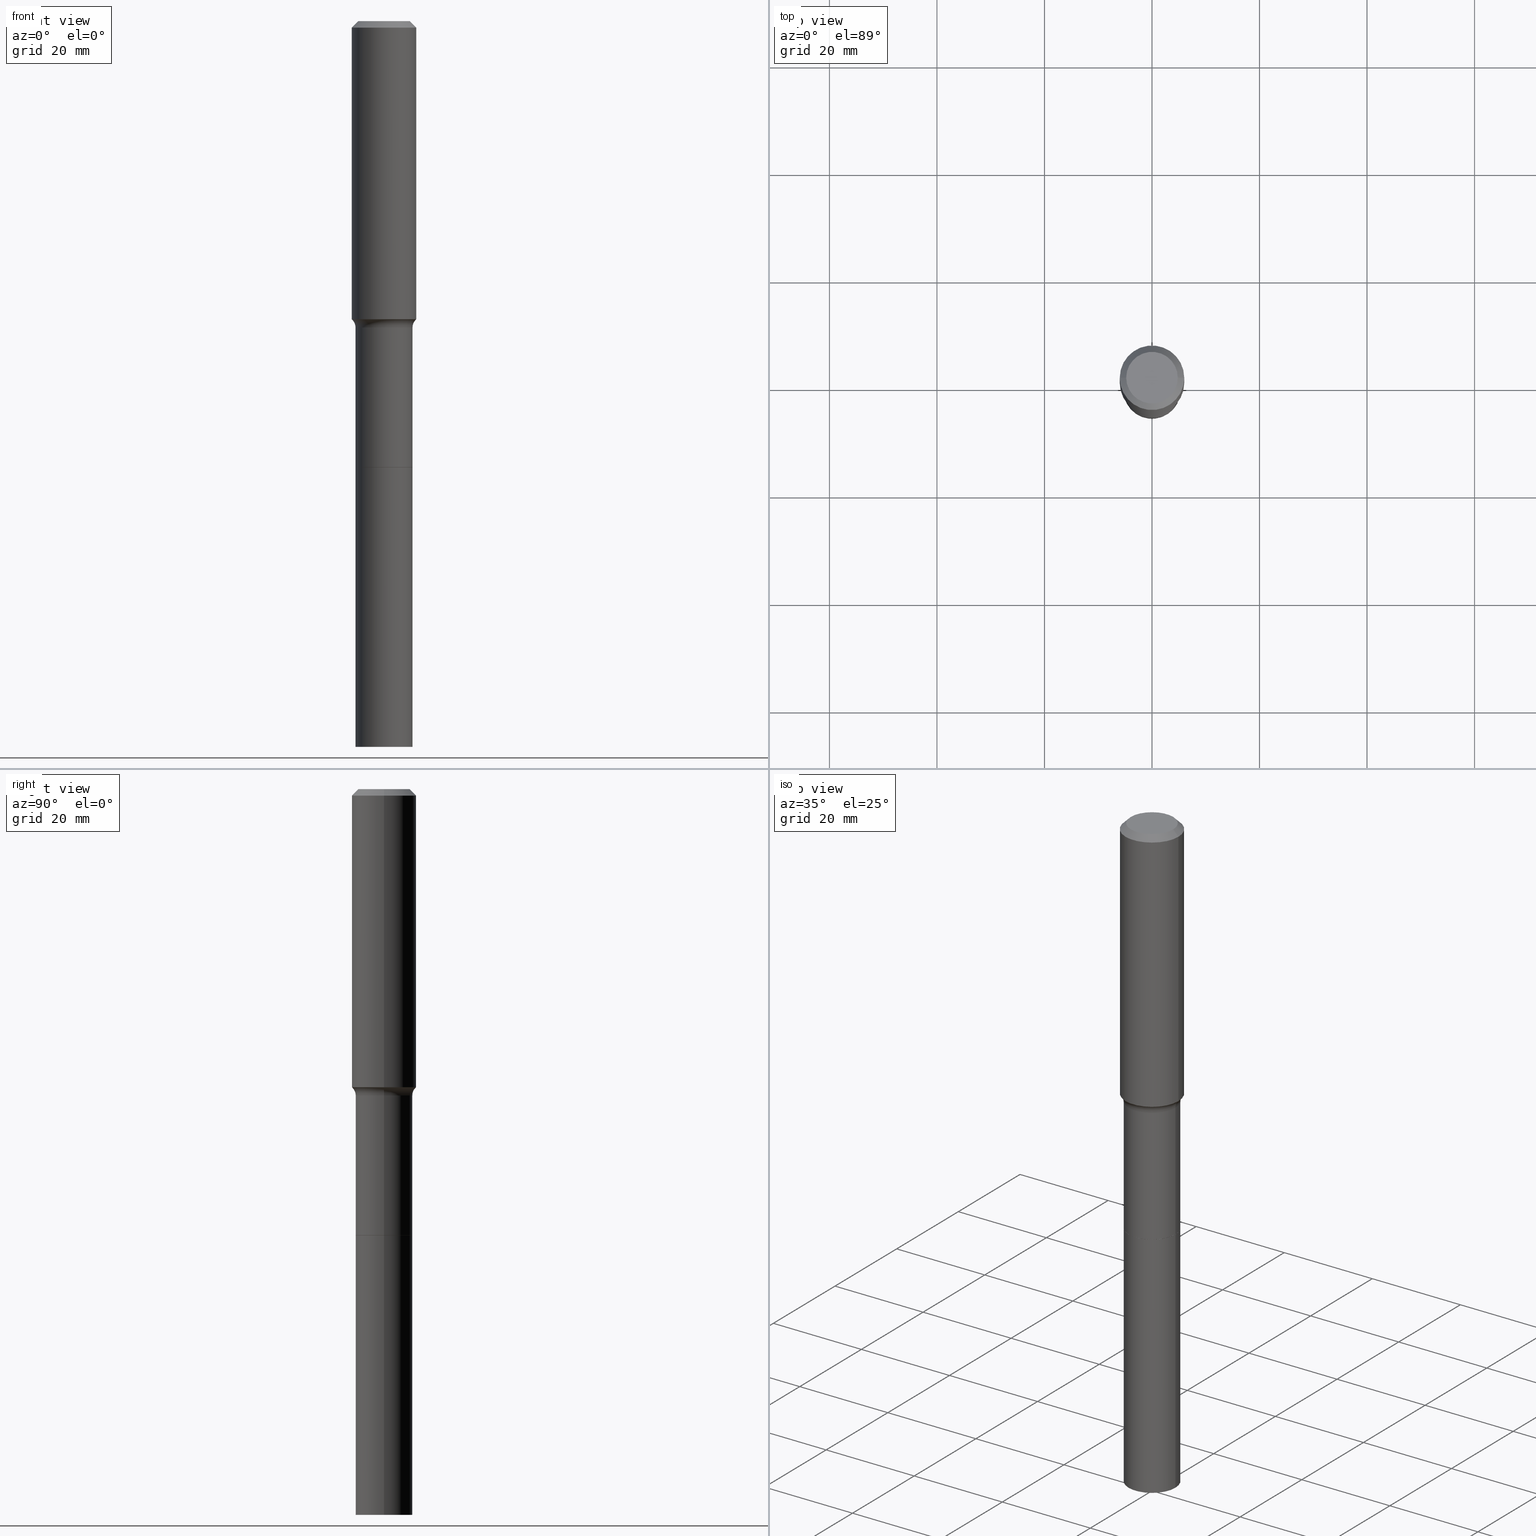
[diagram: canonical four-view strip — front | top / right | iso, engineering-drawing reading convention]
A machine part, canonical four-view strip (front | top / right | iso — engineering-drawing reading convention). The complete STEP part file that produces these views, byte-faithful:
ISO-10303-21;
HEADER;
FILE_DESCRIPTION (( 'STEP AP203' ),
    '1' );
FILE_NAME ('67894.STEP',
    '2025-04-01T15:32:11',
    ( '' ),
    ( '' ),
    'SwSTEP 2.0',
    'SolidWorks 2024',
    '' );
FILE_SCHEMA (( 'CONFIG_CONTROL_DESIGN' ));
ENDSEC;

DATA;
#1 = CYLINDRICAL_SURFACE ( 'NONE', #73, 0.2086500000000001687 ) ;
#2 = ADVANCED_BREP_SHAPE_REPRESENTATION ( '67894', ( #6, #350, #122 ), #284 ) ;
#3 = CYLINDRICAL_SURFACE ( 'NONE', #54, 0.2086500000000001687 ) ;
#4 = CIRCLE ( 'NONE', #501, 0.2086500000000000021 ) ;
#5 = ORIENTED_EDGE ( 'NONE', *, *, #404, .F. ) ;
#6 = MANIFOLD_SOLID_BREP ( 'Body-Move/Copy2[1]', #433 ) ;
#7 = CARTESIAN_POINT ( 'NONE',  ( 0.000000000000000000, 0.000000000000000000, 0.000000000000000000 ) ) ;
#8 = ORIENTED_EDGE ( 'NONE', *, *, #448, .F. ) ;
#9 = CARTESIAN_POINT ( 'NONE',  ( 7.991792058613026945E-29, -1.141016101533940013E-14, -3.268000000000000238 ) ) ;
#10 = ORIENTED_EDGE ( 'NONE', *, *, #497, .F. ) ;
#11 = CARTESIAN_POINT ( 'NONE',  ( 5.487632001079447088E-29, -7.834884124364020406E-15, -2.244000000000000217 ) ) ;
#12 = CIRCLE ( 'NONE', #240, 0.2086500000000003352 ) ;
#13 = AXIS2_PLACEMENT_3D ( 'NONE', #56, #419, #378 ) ;
#14 = APPROVAL_PERSON_ORGANIZATION ( #480, #454, #118 ) ;
#15 = EDGE_CURVE ( 'NONE', #371, #445, #138, .T. ) ;
#16 = LINE ( 'NONE', #221, #143 ) ;
#17 = VERTEX_POINT ( 'NONE', #110 ) ;
#18 = DIRECTION ( 'NONE',  ( -0.6819983600624963671, 7.399397606724278688E-15, 0.7313537016191724582 ) ) ;
#19 = ORIENTED_EDGE ( 'NONE', *, *, #15, .F. ) ;
#20 = CARTESIAN_POINT ( 'NONE',  ( 0.2081500000000000017, -1.286366469669979686E-14, -3.268000000000000238 ) ) ;
#21 = ORIENTED_EDGE ( 'NONE', *, *, #300, .T. ) ;
#22 = VECTOR ( 'NONE', #393, 39.37007874015748143 ) ;
#23 = DIRECTION ( 'NONE',  ( 1.000000000000000000, -6.982962677686266711E-15, 0.000000000000000000 ) ) ;
#24 = ORIENTED_EDGE ( 'NONE', *, *, #175, .F. ) ;
#25 = PERSON_AND_ORGANIZATION_ROLE ( 'design_supplier' ) ;
#26 = PRODUCT_DEFINITION_SHAPE ( 'NONE', 'NONE',  #194 ) ;
#27 = EDGE_LOOP ( 'NONE', ( #466, #269, #362, #229 ) ) ;
#28 = EDGE_CURVE ( 'NONE', #189, #379, #330, .T. ) ;
#29 = EDGE_CURVE ( 'NONE', #367, #104, #176, .T. ) ;
#30 = DIMENSIONAL_EXPONENTS ( 1.000000000000000000, 0.000000000000000000, 0.000000000000000000, 0.000000000000000000, 0.000000000000000000, 0.000000000000000000, 0.000000000000000000 ) ;
#31 = DIRECTION ( 'NONE',  ( -2.445468806185136597E-29, 3.491481338843145583E-15, 1.000000000000000000 ) ) ;
#32 = ADVANCED_FACE ( 'NONE', ( #160 ), #201, .T. ) ;
#33 = AXIS2_PLACEMENT_3D ( 'NONE', #105, #456, #267 ) ;
#34 = PERSON_AND_ORGANIZATION ( #145, #478 ) ;
#35 = DIRECTION ( 'NONE',  ( -1.000000000000000000, 7.105427357601006592E-15, 0.000000000000000000 ) ) ;
#36 = LINE ( 'NONE', #398, #184 ) ;
#37 = CALENDAR_DATE ( 2025, 1, 4 ) ;
#38 = FACE_OUTER_BOUND ( 'NONE', #426, .T. ) ;
#39 = AXIS2_PLACEMENT_3D ( 'NONE', #361, #368, #172 ) ;
#40 = CARTESIAN_POINT ( 'NONE',  ( 1.299766670487400218E-28, -1.855722331595131973E-14, -5.315000000000000391 ) ) ;
#41 = DIRECTION ( 'NONE',  ( -2.445468806185136877E-29, 3.491481338843145188E-15, 1.000000000000000000 ) ) ;
#42 = CC_DESIGN_PERSON_AND_ORGANIZATION_ASSIGNMENT ( #34, #191, ( #194 ) ) ;
#43 = DIRECTION ( 'NONE',  ( 1.000000000000000000, -6.982962677686266711E-15, 0.000000000000000000 ) ) ;
#44 = VERTEX_POINT ( 'NONE', #481 ) ;
#45 = FACE_OUTER_BOUND ( 'NONE', #146, .T. ) ;
#46 = AXIS2_PLACEMENT_3D ( 'NONE', #318, #121, #86 ) ;
#47 = ORIENTED_EDGE ( 'NONE', *, *, #510, .T. ) ;
#48 = CC_DESIGN_APPROVAL ( #129, ( #365 ) ) ;
#49 = DIRECTION ( 'NONE',  ( 1.000000000000000000, -6.982962677686266711E-15, 4.876176775795936353E-29 ) ) ;
#50 = ADVANCED_FACE ( 'NONE', ( #317 ), #271, .F. ) ;
#51 = FACE_OUTER_BOUND ( 'NONE', #334, .T. ) ;
#52 = DIRECTION ( 'NONE',  ( -2.445468806185136597E-29, 3.491481338843145583E-15, 1.000000000000000000 ) ) ;
#53 = ORIENTED_EDGE ( 'NONE', *, *, #309, .T. ) ;
#54 = AXIS2_PLACEMENT_3D ( 'NONE', #247, #96, #188 ) ;
#55 = ADVANCED_FACE ( 'NONE', ( #277 ), #483, .T. ) ;
#56 = CARTESIAN_POINT ( 'NONE',  ( 0.2886499999999998511, -9.850516301278158635E-15, -2.244000000000000217 ) ) ;
#57 = ORIENTED_EDGE ( 'NONE', *, *, #158, .T. ) ;
#58 = DIRECTION ( 'NONE',  ( 1.000000000000000000, -6.982962677686265922E-15, 0.000000000000000000 ) ) ;
#59 = ORIENTED_EDGE ( 'NONE', *, *, #220, .F. ) ;
#60 = CIRCLE ( 'NONE', #356, 0.2362000000000002709 ) ;
#61 = EDGE_CURVE ( 'NONE', #385, #183, #479, .T. ) ;
#62 = CARTESIAN_POINT ( 'NONE',  ( 1.155239464041865857E-30, -1.649375784469512352E-16, -0.04724000000000030258 ) ) ;
#63 = ORIENTED_EDGE ( 'NONE', *, *, #79, .F. ) ;
#64 = AXIS2_PLACEMENT_3D ( 'NONE', #298, #223, #502 ) ;
#65 = DIRECTION ( 'NONE',  ( -2.445468806185136597E-29, 3.491481338843145583E-15, 1.000000000000000000 ) ) ;
#66 = ORIENTED_EDGE ( 'NONE', *, *, #29, .T. ) ;
#67 = EDGE_CURVE ( 'NONE', #256, #485, #12, .T. ) ;
#68 = PERSON_AND_ORGANIZATION ( #145, #478 ) ;
#69 = DIRECTION ( 'NONE',  ( -2.445468806185136597E-29, 3.491481338843145583E-15, 1.000000000000000000 ) ) ;
#70 = EDGE_CURVE ( 'NONE', #371, #367, #372, .T. ) ;
#71 = COORDINATED_UNIVERSAL_TIME_OFFSET ( 5, 0, .BEHIND. ) ;
#72 = DIRECTION ( 'NONE',  ( -2.445468806185136597E-29, 3.491481338843145583E-15, 1.000000000000000000 ) ) ;
#73 = AXIS2_PLACEMENT_3D ( 'NONE', #165, #405, #364 ) ;
#74 =( CONVERSION_BASED_UNIT ( 'INCH', #429 ) LENGTH_UNIT ( ) NAMED_UNIT ( #30 ) );
#75 = CARTESIAN_POINT ( 'NONE',  ( 0.000000000000000000, 0.000000000000000000, 0.000000000000000000 ) ) ;
#76 = APPROVAL_STATUS ( 'not_yet_approved' ) ;
#77 = DIRECTION ( 'NONE',  ( -2.445468806185136597E-29, 3.491481338843145583E-15, 1.000000000000000000 ) ) ;
#78 = CALENDAR_DATE ( 2025, 1, 4 ) ;
#79 = EDGE_CURVE ( 'NONE', #261, #340, #95, .T. ) ;
#80 = DIRECTION ( 'NONE',  ( 1.000000000000000000, -6.982962677686266711E-15, 0.000000000000000000 ) ) ;
#81 = AXIS2_PLACEMENT_3D ( 'NONE', #148, #179, #453 ) ;
#82 = CARTESIAN_POINT ( 'NONE',  ( -0.1889600000000000168, 1.401969416799070942E-15, 3.855188123706346622E-18 ) ) ;
#83 = ORIENTED_EDGE ( 'NONE', *, *, #442, .T. ) ;
#84 = CARTESIAN_POINT ( 'NONE',  ( 0.2086500000000000021, -1.286715617803863986E-14, -3.268000000000000238 ) ) ;
#85 = EDGE_LOOP ( 'NONE', ( #173, #288 ) ) ;
#86 = DIRECTION ( 'NONE',  ( 1.000000000000000000, -6.982962677686263555E-15, 0.000000000000000000 ) ) ;
#87 = ORIENTED_EDGE ( 'NONE', *, *, #494, .F. ) ;
#88 = COORDINATED_UNIVERSAL_TIME_OFFSET ( 5, 0, .BEHIND. ) ;
#89 = CYLINDRICAL_SURFACE ( 'NONE', #227, 0.2362000000000001321 ) ;
#90 = APPROVAL_PERSON_ORGANIZATION ( #116, #355, #391 ) ;
#91 = EDGE_LOOP ( 'NONE', ( #180, #47, #124, #87 ) ) ;
#92 = DIRECTION ( 'NONE',  ( 1.000000000000000000, -6.982962677686269077E-15, 0.000000000000000000 ) ) ;
#93 = CARTESIAN_POINT ( 'NONE',  ( 0.2362000000000001321, -1.649375784469497117E-15, 1.151752954443000789E-29 ) ) ;
#94 = ORIENTED_EDGE ( 'NONE', *, *, #250, .F. ) ;
#95 = CIRCLE ( 'NONE', #208, 0.2086500000000000021 ) ;
#96 = DIRECTION ( 'NONE',  ( -2.445468806185136597E-29, 3.491481338843145583E-15, 1.000000000000000000 ) ) ;
#97 = DIRECTION ( 'NONE',  ( 0.6819983600624963671, -2.208861293262454109E-15, 0.7313537016191724582 ) ) ;
#98 = VECTOR ( 'NONE', #242, 39.37007874015748143 ) ;
#99 = LOCAL_TIME ( 11, 32, 11.00000000000000000, #427 ) ;
#100 = ADVANCED_FACE ( 'NONE', ( #310 ), #156, .T. ) ;
#101 = CARTESIAN_POINT ( 'NONE',  ( 0.1889600000000000168, -1.540873453589747738E-15, 3.855188123725863225E-18 ) ) ;
#102 = EDGE_LOOP ( 'NONE', ( #303, #211 ) ) ;
#103 = FACE_OUTER_BOUND ( 'NONE', #27, .T. ) ;
#104 = VERTEX_POINT ( 'NONE', #193 ) ;
#105 = CARTESIAN_POINT ( 'NONE',  ( 7.991792058613026945E-29, -1.141016101533940013E-14, -3.268000000000000238 ) ) ;
#106 = ORIENTED_EDGE ( 'NONE', *, *, #205, .T. ) ;
#107 = TOROIDAL_SURFACE ( 'NONE', #392, 0.2886499999999998511, 0.07999999999999990452 ) ;
#108 = MECHANICAL_CONTEXT ( 'NONE', #346, 'mechanical' ) ;
#109 = EDGE_CURVE ( 'NONE', #485, #340, #36, .T. ) ;
#110 = CARTESIAN_POINT ( 'NONE',  ( -0.2086499999999999744, -8.139102281353550858E-15, -3.267500000000000071 ) ) ;
#111 = LINE ( 'NONE', #236, #22 ) ;
#112 = DIRECTION ( 'NONE',  ( -2.445468806185136877E-29, 3.491481338843145188E-15, 1.000000000000000000 ) ) ;
#113 = CARTESIAN_POINT ( 'NONE',  ( 7.991792058613026945E-29, -1.141016101533940013E-14, -3.268000000000000238 ) ) ;
#114 = ADVANCED_FACE ( 'NONE', ( #233 ), #307, .F. ) ;
#115 = CIRCLE ( 'NONE', #13, 0.07999999999999990452 ) ;
#116 = PERSON_AND_ORGANIZATION ( #145, #478 ) ;
#117 = DIRECTION ( 'NONE',  ( 1.000000000000000000, -6.982962677686263555E-15, 0.000000000000000000 ) ) ;
#118 = APPROVAL_ROLE ( '' ) ;
#119 = DIRECTION ( 'NONE',  ( 2.438088387897960049E-29, -3.491481338843145188E-15, -1.000000000000000000 ) ) ;
#120 = CC_DESIGN_PERSON_AND_ORGANIZATION_ASSIGNMENT ( #68, #509, ( #181 ) ) ;
#121 = DIRECTION ( 'NONE',  ( -2.445468806185136597E-29, 3.491481338843145583E-15, 1.000000000000000000 ) ) ;
#122 = AXIS2_PLACEMENT_3D ( 'NONE', #304, #197, #515 ) ;
#123 = DIRECTION ( 'NONE',  ( -2.445468806185136597E-29, 3.491481338843145583E-15, 1.000000000000000000 ) ) ;
#124 = ORIENTED_EDGE ( 'NONE', *, *, #439, .F. ) ;
#125 = CARTESIAN_POINT ( 'NONE',  ( 0.2086500000000003352, -2.001421847865056104E-14, -5.315000000000000391 ) ) ;
#126 = ORIENTED_EDGE ( 'NONE', *, *, #61, .T. ) ;
#127 = CARTESIAN_POINT ( 'NONE',  ( 1.299766670487400218E-28, -1.855722331595131973E-14, -5.315000000000000391 ) ) ;
#128 = CIRCLE ( 'NONE', #422, 0.2362000000000002709 ) ;
#129 = APPROVAL ( #280, 'UNSPECIFIED' ) ;
#130 = VECTOR ( 'NONE', #97, 39.37007874015748143 ) ;
#131 = AXIS2_PLACEMENT_3D ( 'NONE', #62, #225, #23 ) ;
#132 = CARTESIAN_POINT ( 'NONE',  ( 0.2081500000000000017, -1.286366469669979686E-14, -3.268000000000000238 ) ) ;
#133 = AXIS2_PLACEMENT_3D ( 'NONE', #421, #341, #134 ) ;
#134 = DIRECTION ( 'NONE',  ( -1.000000000000000000, 6.982962677686266711E-15, 0.000000000000000000 ) ) ;
#135 = EDGE_LOOP ( 'NONE', ( #337, #457, #414, #342 ) ) ;
#136 = FACE_OUTER_BOUND ( 'NONE', #243, .T. ) ;
#137 = EDGE_CURVE ( 'NONE', #189, #17, #111, .T. ) ;
#138 = LINE ( 'NONE', #294, #130 ) ;
#139 = AXIS2_PLACEMENT_3D ( 'NONE', #127, #452, #447 ) ;
#140 = DIRECTION ( 'NONE',  ( -2.445468806185136597E-29, 3.491481338843145583E-15, 1.000000000000000000 ) ) ;
#141 = EDGE_LOOP ( 'NONE', ( #94, #376, #126, #8 ) ) ;
#142 = ADVANCED_FACE ( 'NONE', ( #38 ), #476, .F. ) ;
#143 = VECTOR ( 'NONE', #18, 39.37007874015748143 ) ;
#144 = CARTESIAN_POINT ( 'NONE',  ( -0.2301417038704664242, -6.009134201775512825E-15, -2.189440131195000472 ) ) ;
#145 = PERSON ( 'UNSPECIFIED', 'UNSPECIFIED', 'UNSPECIFIED', ('UNSPECIFIED'), ('UNSPECIFIED'), ('UNSPECIFIED') ) ;
#146 = EDGE_LOOP ( 'NONE', ( #166, #345, #299, #490 ) ) ;
#147 = UNCERTAINTY_MEASURE_WITH_UNIT (LENGTH_MEASURE( 1.000000000000000082E-05 ), #74, 'distance_accuracy_value', 'NONE');
#148 = CARTESIAN_POINT ( 'NONE',  ( 0.000000000000000000, 0.000000000000000000, 0.000000000000000000 ) ) ;
#149 = VERTEX_POINT ( 'NONE', #396 ) ;
#150 = EDGE_CURVE ( 'NONE', #411, #149, #513, .T. ) ;
#151 = PERSON_AND_ORGANIZATION_ROLE ( 'creator' ) ;
#152 = AXIS2_PLACEMENT_3D ( 'NONE', #437, #431, #80 ) ;
#153 = ORIENTED_EDGE ( 'NONE', *, *, #300, .F. ) ;
#154 = CIRCLE ( 'NONE', #131, 0.2361999999999999933 ) ;
#155 = APPLICATION_PROTOCOL_DEFINITION ( 'international standard', 'config_control_design', 1994, #302 ) ;
#156 = CYLINDRICAL_SURFACE ( 'NONE', #477, 0.2086499999999999466 ) ;
#157 = DIRECTION ( 'NONE',  ( 0.7071067811865452413, -7.319954787623248157E-15, -0.7071067811865497932 ) ) ;
#158 = EDGE_CURVE ( 'NONE', #44, #149, #313, .T. ) ;
#159 = DESIGN_CONTEXT ( 'detailed design', #302, 'design' ) ;
#160 = FACE_OUTER_BOUND ( 'NONE', #141, .T. ) ;
#161 = AXIS2_PLACEMENT_3D ( 'NONE', #282, #482, #290 ) ;
#162 = DATE_AND_TIME ( #37, #459 ) ;
#163 = CARTESIAN_POINT ( 'NONE',  ( 5.338320000124226964E-29, -7.621706158780509838E-15, -2.182943403989625164 ) ) ;
#164 = DIRECTION ( 'NONE',  ( 1.000000000000000000, -6.982962677686269077E-15, 0.000000000000000000 ) ) ;
#165 = CARTESIAN_POINT ( 'NONE',  ( 7.991792058613026945E-29, -1.141016101533940013E-14, -3.268000000000000238 ) ) ;
#166 = ORIENTED_EDGE ( 'NONE', *, *, #507, .F. ) ;
#167 = CC_DESIGN_APPROVAL ( #355, ( #194 ) ) ;
#168 = EDGE_CURVE ( 'NONE', #463, #445, #60, .T. ) ;
#169 = DIRECTION ( 'NONE',  ( -2.445468806185136597E-29, 3.491481338843145583E-15, 1.000000000000000000 ) ) ;
#170 = ORIENTED_EDGE ( 'NONE', *, *, #507, .T. ) ;
#171 = CALENDAR_DATE ( 2025, 1, 4 ) ;
#172 = DIRECTION ( 'NONE',  ( 1.000000000000000000, -6.982962677686265922E-15, 0.000000000000000000 ) ) ;
#173 = ORIENTED_EDGE ( 'NONE', *, *, #404, .T. ) ;
#174 = FACE_OUTER_BOUND ( 'NONE', #403, .T. ) ;
#175 = EDGE_CURVE ( 'NONE', #445, #463, #128, .T. ) ;
#176 = CIRCLE ( 'NONE', #415, 0.07999999999999990452 ) ;
#177 = AXIS2_PLACEMENT_3D ( 'NONE', #262, #65, #58 ) ;
#178 = DIRECTION ( 'NONE',  ( 1.000000000000000000, -6.982962677686266711E-15, 4.876185090822587894E-29 ) ) ;
#179 = DIRECTION ( 'NONE',  ( -2.445468806185136597E-29, 3.491481338843145583E-15, 1.000000000000000000 ) ) ;
#180 = ORIENTED_EDGE ( 'NONE', *, *, #175, .T. ) ;
#181 = PRODUCT ( '67894', '67894', '', ( #108 ) ) ;
#182 = LINE ( 'NONE', #413, #338 ) ;
#183 = VERTEX_POINT ( 'NONE', #489 ) ;
#184 = VECTOR ( 'NONE', #518, 39.37007874015748143 ) ;
#185 = DIRECTION ( 'NONE',  ( -2.445468806185136597E-29, 3.491481338843145583E-15, 1.000000000000000000 ) ) ;
#186 = ADVANCED_FACE ( 'NONE', ( #174 ), #273, .T. ) ;
#187 = EDGE_LOOP ( 'NONE', ( #506, #170, #24, #19 ) ) ;
#188 = DIRECTION ( 'NONE',  ( 1.000000000000000000, -6.982962677686269866E-15, 0.000000000000000000 ) ) ;
#189 = VERTEX_POINT ( 'NONE', #484 ) ;
#190 = EDGE_LOOP ( 'NONE', ( #224, #153 ) ) ;
#191 = PERSON_AND_ORGANIZATION_ROLE ( 'creator' ) ;
#192 = AXIS2_PLACEMENT_3D ( 'NONE', #75, #399, #354 ) ;
#193 = CARTESIAN_POINT ( 'NONE',  ( -0.2086499999999998634, -8.139102281353550858E-15, -2.244000000000000217 ) ) ;
#194 = PRODUCT_DEFINITION ( 'UNKNOWN', '', #234, #159 ) ;
#195 = APPLICATION_PROTOCOL_DEFINITION ( 'international standard', 'config_control_design', 1994, #346 ) ;
#196 = CARTESIAN_POINT ( 'NONE',  ( 5.487632001079447088E-29, -7.834884124364020406E-15, -2.244000000000000217 ) ) ;
#197 = DIRECTION ( 'NONE',  ( 0.000000000000000000, 0.000000000000000000, 1.000000000000000000 ) ) ;
#198 = CARTESIAN_POINT ( 'NONE',  ( 1.155239464041865857E-30, -1.649375784469512352E-16, -0.04724000000000030258 ) ) ;
#199 = CIRCLE ( 'NONE', #177, 0.2086499999999998634 ) ;
#200 = APPROVAL_PERSON_ORGANIZATION ( #446, #129, #487 ) ;
#201 = CYLINDRICAL_SURFACE ( 'NONE', #192, 0.2086499999999999466 ) ;
#202 = ADVANCED_FACE ( 'NONE', ( #285 ), #488, .T. ) ;
#203 = DATE_AND_TIME ( #171, #486 ) ;
#204 = FACE_OUTER_BOUND ( 'NONE', #248, .T. ) ;
#205 = EDGE_CURVE ( 'NONE', #379, #189, #348, .T. ) ;
#206 = DIRECTION ( 'NONE',  ( 1.000000000000000000, -6.982962677686265922E-15, 0.000000000000000000 ) ) ;
#207 = ORIENTED_EDGE ( 'NONE', *, *, #305, .F. ) ;
#208 = AXIS2_PLACEMENT_3D ( 'NONE', #312, #31, #511 ) ;
#209 = ADVANCED_FACE ( 'NONE', ( #45 ), #382, .T. ) ;
#210 = CARTESIAN_POINT ( 'NONE',  ( 7.991792058613026945E-29, -1.141016101533940013E-14, -3.268000000000000238 ) ) ;
#211 = ORIENTED_EDGE ( 'NONE', *, *, #28, .F. ) ;
#212 = APPROVAL_DATE_TIME ( #203, #129 ) ;
#213 = LINE ( 'NONE', #214, #217 ) ;
#214 = CARTESIAN_POINT ( 'NONE',  ( -0.2086499999999999466, 1.482547418163448659E-15, -1.026335806581685680E-29 ) ) ;
#215 = VECTOR ( 'NONE', #157, 39.37007874015748143 ) ;
#216 = CC_DESIGN_DATE_AND_TIME_ASSIGNMENT ( #162, #316, ( #194 ) ) ;
#217 = VECTOR ( 'NONE', #41, 39.37007874015748143 ) ;
#218 = DIRECTION ( 'NONE',  ( 1.000000000000000000, -6.982962677686265922E-15, 4.876176775795935793E-29 ) ) ;
#219 = ORIENTED_EDGE ( 'NONE', *, *, #137, .T. ) ;
#220 = EDGE_CURVE ( 'NONE', #379, #385, #444, .T. ) ;
#221 = CARTESIAN_POINT ( 'NONE',  ( -0.2301417038704665630, -6.009134201775511247E-15, -2.189440131195000472 ) ) ;
#222 = ORIENTED_EDGE ( 'NONE', *, *, #448, .T. ) ;
#223 = DIRECTION ( 'NONE',  ( -2.445468806185136597E-29, 3.491481338843145583E-15, 1.000000000000000000 ) ) ;
#224 = ORIENTED_EDGE ( 'NONE', *, *, #67, .F. ) ;
#225 = DIRECTION ( 'NONE',  ( -2.445468806185136597E-29, 3.491481338843145583E-15, 1.000000000000000000 ) ) ;
#226 = EDGE_LOOP ( 'NONE', ( #322, #408 ) ) ;
#227 = AXIS2_PLACEMENT_3D ( 'NONE', #7, #252, #49 ) ;
#228 = CARTESIAN_POINT ( 'NONE',  ( -9.427742298522546243E-47, 1.346031739168365344E-32, 3.855188123715862256E-18 ) ) ;
#229 = ORIENTED_EDGE ( 'NONE', *, *, #442, .F. ) ;
#230 = CALENDAR_DATE ( 2025, 1, 4 ) ;
#231 = DIRECTION ( 'NONE',  ( 1.000000000000000000, -6.982962677686268288E-15, 0.000000000000000000 ) ) ;
#232 = CC_DESIGN_DATE_AND_TIME_ASSIGNMENT ( #388, #474, ( #365 ) ) ;
#233 = FACE_OUTER_BOUND ( 'NONE', #226, .T. ) ;
#234 = PRODUCT_DEFINITION_FORMATION_WITH_SPECIFIED_SOURCE ( 'ANY', '', #181, .NOT_KNOWN. ) ;
#235 = ADVANCED_FACE ( 'NONE', ( #244 ), #331, .T. ) ;
#236 = CARTESIAN_POINT ( 'NONE',  ( -0.2081500000000000017, -9.931166310854751188E-15, -3.268000000000000238 ) ) ;
#237 = CALENDAR_DATE ( 2025, 1, 4 ) ;
#238 = CARTESIAN_POINT ( 'NONE',  ( -4.713871149261273121E-47, 6.730158695841826722E-33, 1.927594061857931128E-18 ) ) ;
#239 = DIRECTION ( 'NONE',  ( -2.445468806185136597E-29, 3.491481338843145583E-15, 1.000000000000000000 ) ) ;
#240 = AXIS2_PLACEMENT_3D ( 'NONE', #40, #72, #117 ) ;
#241 = VECTOR ( 'NONE', #260, 39.37007874015748143 ) ;
#242 = DIRECTION ( 'NONE',  ( -2.445468806185136877E-29, 3.491481338843145188E-15, 1.000000000000000000 ) ) ;
#243 = EDGE_LOOP ( 'NONE', ( #106, #219, #10, #59 ) ) ;
#244 = FACE_OUTER_BOUND ( 'NONE', #500, .T. ) ;
#245 = ORIENTED_EDGE ( 'NONE', *, *, #510, .F. ) ;
#246 = ADVANCED_FACE ( 'NONE', ( #51 ), #89, .T. ) ;
#247 = CARTESIAN_POINT ( 'NONE',  ( 7.991792058613026945E-29, -1.141016101533940013E-14, -3.268000000000000238 ) ) ;
#248 = EDGE_LOOP ( 'NONE', ( #423, #265, #63, #496 ) ) ;
#249 = AXIS2_PLACEMENT_3D ( 'NONE', #113, #470, #349 ) ;
#250 = EDGE_CURVE ( 'NONE', #17, #104, #213, .T. ) ;
#251 = CIRCLE ( 'NONE', #39, 0.2086499999999998634 ) ;
#252 = DIRECTION ( 'NONE',  ( -2.445468806185136597E-29, 3.491481338843145583E-15, 1.000000000000000000 ) ) ;
#253 = ORIENTED_EDGE ( 'NONE', *, *, #29, .F. ) ;
#254 = DIRECTION ( 'NONE',  ( -2.445468806185136597E-29, 3.491481338843145583E-15, 1.000000000000000000 ) ) ;
#255 = CARTESIAN_POINT ( 'NONE',  ( 7.990569324209934144E-29, -1.140841527466997784E-14, -3.267500000000000071 ) ) ;
#256 = VERTEX_POINT ( 'NONE', #125 ) ;
#257 = EDGE_CURVE ( 'NONE', #183, #104, #251, .T. ) ;
#258 = AXIS2_PLACEMENT_3D ( 'NONE', #472, #239, #231 ) ;
#259 = CIRCLE ( 'NONE', #64, 0.2086500000000000021 ) ;
#260 = DIRECTION ( 'NONE',  ( -2.445468806185136877E-29, 3.491481338843145188E-15, 1.000000000000000000 ) ) ;
#261 = VERTEX_POINT ( 'NONE', #84 ) ;
#262 = CARTESIAN_POINT ( 'NONE',  ( 5.487632001079447088E-29, -7.834884124364020406E-15, -2.244000000000000217 ) ) ;
#263 = EDGE_LOOP ( 'NONE', ( #450, #21, #53, #207 ) ) ;
#264 = CARTESIAN_POINT ( 'NONE',  ( -0.2086500000000000021, -1.350114474748190851E-14, -3.268000000000000238 ) ) ;
#265 = ORIENTED_EDGE ( 'NONE', *, *, #109, .T. ) ;
#266 = AXIS2_PLACEMENT_3D ( 'NONE', #238, #119, #428 ) ;
#267 = DIRECTION ( 'NONE',  ( 1.000000000000000000, -6.982962677686268288E-15, 0.000000000000000000 ) ) ;
#268 = AXIS2_PLACEMENT_3D ( 'NONE', #255, #52, #417 ) ;
#269 = ORIENTED_EDGE ( 'NONE', *, *, #150, .T. ) ;
#270 = PERSON_AND_ORGANIZATION_ROLE ( 'classification_officer' ) ;
#271 = PLANE ( 'NONE',  #266 ) ;
#272 = CARTESIAN_POINT ( 'NONE',  ( -0.2886499999999998511, -5.783902517592492277E-15, -2.244000000000000217 ) ) ;
#273 = CONICAL_SURFACE ( 'NONE', #491, 0.2081500000000000017, 0.7853981633972775267 ) ;
#274 = COORDINATED_UNIVERSAL_TIME_OFFSET ( 5, 0, .BEHIND. ) ;
#275 = DIRECTION ( 'NONE',  ( 1.000000000000000000, -6.982962677686266711E-15, 0.000000000000000000 ) ) ;
#276 = AXIS2_PLACEMENT_3D ( 'NONE', #366, #169, #449 ) ;
#277 = FACE_OUTER_BOUND ( 'NONE', #187, .T. ) ;
#278 = DATE_AND_TIME ( #78, #468 ) ;
#279 = DIRECTION ( 'NONE',  ( -2.445468806185136877E-29, 3.491481338843145188E-15, 1.000000000000000000 ) ) ;
#280 = APPROVAL_STATUS ( 'not_yet_approved' ) ;
#281 = AXIS2_PLACEMENT_3D ( 'NONE', #196, #358, #352 ) ;
#282 = CARTESIAN_POINT ( 'NONE',  ( 1.155239464041865857E-30, -1.649375784469512352E-16, -0.04724000000000030258 ) ) ;
#283 = CLOSED_SHELL ( 'NONE', ( #432, #395, #347, #55, #401, #100, #32, #142, #209, #246, #235, #50, #377, #186 ) ) ;
#284 =( GEOMETRIC_REPRESENTATION_CONTEXT ( 3 ) GLOBAL_UNCERTAINTY_ASSIGNED_CONTEXT ( ( #147 ) ) GLOBAL_UNIT_ASSIGNED_CONTEXT ( ( #74, #353, #357 ) ) REPRESENTATION_CONTEXT ( 'NONE', 'WORKASPACE' ) );
#285 = FACE_OUTER_BOUND ( 'NONE', #190, .T. ) ;
#286 = ORIENTED_EDGE ( 'NONE', *, *, #150, .F. ) ;
#287 = DIRECTION ( 'NONE',  ( -2.445468806185136597E-29, 3.491481338843145583E-15, 1.000000000000000000 ) ) ;
#288 = ORIENTED_EDGE ( 'NONE', *, *, #458, .T. ) ;
#289 = EDGE_CURVE ( 'NONE', #367, #371, #451, .T. ) ;
#290 = DIRECTION ( 'NONE',  ( -1.000000000000000000, 6.982962677686266711E-15, 0.000000000000000000 ) ) ;
#291 = DIRECTION ( 'NONE',  ( -2.445468806185136597E-29, 3.491481338843145583E-15, 1.000000000000000000 ) ) ;
#292 = DIRECTION ( 'NONE',  ( 1.000000000000000000, -6.982962677686266711E-15, 4.876185090822587894E-29 ) ) ;
#293 = CARTESIAN_POINT ( 'NONE',  ( -0.2362000000000002709, -5.943404216915151867E-15, -2.182943403989625164 ) ) ;
#294 = CARTESIAN_POINT ( 'NONE',  ( 0.2301417038704665630, -9.251460289288225600E-15, -2.189440131195000472 ) ) ;
#295 = VECTOR ( 'NONE', #410, 39.37007874015748143 ) ;
#296 = FACE_OUTER_BOUND ( 'NONE', #102, .T. ) ;
#297 = VERTEX_POINT ( 'NONE', #82 ) ;
#298 = CARTESIAN_POINT ( 'NONE',  ( 7.990569324209934144E-29, -1.140841527466997784E-14, -3.267500000000000071 ) ) ;
#299 = ORIENTED_EDGE ( 'NONE', *, *, #15, .T. ) ;
#300 = EDGE_CURVE ( 'NONE', #485, #256, #516, .T. ) ;
#301 = FACE_OUTER_BOUND ( 'NONE', #508, .T. ) ;
#302 = APPLICATION_CONTEXT ( 'configuration controlled 3d designs of mechanical parts and assemblies' ) ;
#303 = ORIENTED_EDGE ( 'NONE', *, *, #205, .F. ) ;
#304 = CARTESIAN_POINT ( 'NONE',  ( 0.000000000000000000, 0.000000000000000000, 0.000000000000000000 ) ) ;
#305 = EDGE_CURVE ( 'NONE', #340, #261, #4, .T. ) ;
#306 = AXIS2_PLACEMENT_3D ( 'NONE', #228, #185, #178 ) ;
#307 = PLANE ( 'NONE',  #249 ) ;
#308 = APPROVAL_STATUS ( 'not_yet_approved' ) ;
#309 = EDGE_CURVE ( 'NONE', #256, #261, #326, .T. ) ;
#310 = FACE_OUTER_BOUND ( 'NONE', #135, .T. ) ;
#311 = PERSON_AND_ORGANIZATION ( #145, #478 ) ;
#312 = CARTESIAN_POINT ( 'NONE',  ( 7.991792058613026945E-29, -1.141016101533940013E-14, -3.268000000000000238 ) ) ;
#313 = CIRCLE ( 'NONE', #373, 0.2361999999999999933 ) ;
#314 = DIRECTION ( 'NONE',  ( 7.105427357601001859E-15, 1.000000000000000000, -3.491481338843145583E-15 ) ) ;
#315 = CIRCLE ( 'NONE', #268, 0.2086500000000000021 ) ;
#316 = DATE_TIME_ROLE ( 'creation_date' ) ;
#317 = FACE_OUTER_BOUND ( 'NONE', #85, .T. ) ;
#318 = CARTESIAN_POINT ( 'NONE',  ( 1.299766670487400218E-28, -1.855722331595131973E-14, -5.315000000000000391 ) ) ;
#319 = CC_DESIGN_PERSON_AND_ORGANIZATION_ASSIGNMENT ( #311, #25, ( #234 ) ) ;
#320 = FACE_OUTER_BOUND ( 'NONE', #263, .T. ) ;
#321 = AXIS2_PLACEMENT_3D ( 'NONE', #514, #69, #440 ) ;
#322 = ORIENTED_EDGE ( 'NONE', *, *, #79, .T. ) ;
#323 = LOCAL_TIME ( 11, 32, 11.00000000000000000, #71 ) ;
#324 = CARTESIAN_POINT ( 'NONE',  ( 5.354207543847266757E-29, -7.644389360581633134E-15, -2.189440131195000472 ) ) ;
#325 = ADVANCED_FACE ( 'NONE', ( #204 ), #1, .T. ) ;
#326 = LINE ( 'NONE', #492, #98 ) ;
#327 = ORIENTED_EDGE ( 'NONE', *, *, #70, .F. ) ;
#328 = CARTESIAN_POINT ( 'NONE',  ( 7.991792058613026945E-29, -1.141016101533940013E-14, -3.268000000000000238 ) ) ;
#329 = ORIENTED_EDGE ( 'NONE', *, *, #257, .T. ) ;
#330 = CIRCLE ( 'NONE', #258, 0.2081500000000000017 ) ;
#331 = CONICAL_SURFACE ( 'NONE', #161, 0.2361999999999999933, 0.7853981633974450594 ) ;
#332 = CARTESIAN_POINT ( 'NONE',  ( -0.2086500000000003352, -1.350114474748190378E-14, -5.315000000000000391 ) ) ;
#333 = CARTESIAN_POINT ( 'NONE',  ( 0.2086500000000000021, -1.286541043736921757E-14, -3.267500000000000071 ) ) ;
#334 = EDGE_LOOP ( 'NONE', ( #245, #503, #420, #499 ) ) ;
#335 = CYLINDRICAL_SURFACE ( 'NONE', #81, 0.2362000000000001321 ) ;
#336 = ADVANCED_FACE ( 'NONE', ( #320 ), #3, .T. ) ;
#337 = ORIENTED_EDGE ( 'NONE', *, *, #497, .T. ) ;
#338 = VECTOR ( 'NONE', #425, 39.37007874015748143 ) ;
#339 = CARTESIAN_POINT ( 'NONE',  ( 7.991792058613026945E-29, -1.141016101533940013E-14, -3.268000000000000238 ) ) ;
#340 = VERTEX_POINT ( 'NONE', #264 ) ;
#341 = DIRECTION ( 'NONE',  ( 2.445468806185136597E-29, -3.491481338843145583E-15, -1.000000000000000000 ) ) ;
#342 = ORIENTED_EDGE ( 'NONE', *, *, #61, .F. ) ;
#343 = EDGE_CURVE ( 'NONE', #17, #385, #259, .T. ) ;
#344 = PERSON_AND_ORGANIZATION ( #145, #478 ) ;
#345 = ORIENTED_EDGE ( 'NONE', *, *, #289, .T. ) ;
#346 = APPLICATION_CONTEXT ( 'configuration controlled 3d designs of mechanical parts and assemblies' ) ;
#347 = ADVANCED_FACE ( 'NONE', ( #505 ), #335, .T. ) ;
#348 = CIRCLE ( 'NONE', #430, 0.2081500000000000017 ) ;
#349 = DIRECTION ( 'NONE',  ( -1.000000000000000000, 6.982962677686265922E-15, -4.876176775795935793E-29 ) ) ;
#350 = MANIFOLD_SOLID_BREP ( 'Body-Move/Copy2[2]', #283 ) ;
#351 = COORDINATED_UNIVERSAL_TIME_OFFSET ( 5, 0, .BEHIND. ) ;
#352 = DIRECTION ( 'NONE',  ( 1.000000000000000000, -6.982962677686265133E-15, 4.883557194083111780E-29 ) ) ;
#353 =( NAMED_UNIT ( * ) PLANE_ANGLE_UNIT ( ) SI_UNIT ( $, .RADIAN. ) );
#354 = DIRECTION ( 'NONE',  ( 1.000000000000000000, -6.982962677686266711E-15, 4.876176775795935793E-29 ) ) ;
#355 = APPROVAL ( #76, 'UNSPECIFIED' ) ;
#356 = AXIS2_PLACEMENT_3D ( 'NONE', #163, #123, #92 ) ;
#357 =( NAMED_UNIT ( * ) SI_UNIT ( $, .STERADIAN. ) SOLID_ANGLE_UNIT ( ) );
#358 = DIRECTION ( 'NONE',  ( -2.445468806185136597E-29, 3.491481338843145583E-15, 1.000000000000000000 ) ) ;
#359 = CIRCLE ( 'NONE', #435, 0.1889600000000000168 ) ;
#360 = CARTESIAN_POINT ( 'NONE',  ( 0.000000000000000000, 0.000000000000000000, 0.000000000000000000 ) ) ;
#361 = CARTESIAN_POINT ( 'NONE',  ( 5.487632001079447088E-29, -7.834884124364020406E-15, -2.244000000000000217 ) ) ;
#362 = ORIENTED_EDGE ( 'NONE', *, *, #439, .T. ) ;
#363 = SHAPE_DEFINITION_REPRESENTATION ( #26, #2 ) ;
#364 = DIRECTION ( 'NONE',  ( 1.000000000000000000, -6.982962677686269866E-15, 0.000000000000000000 ) ) ;
#365 = SECURITY_CLASSIFICATION ( '', '', #471 ) ;
#366 = CARTESIAN_POINT ( 'NONE',  ( 5.354207543847266757E-29, -7.644389360581633134E-15, -2.189440131195000472 ) ) ;
#367 = VERTEX_POINT ( 'NONE', #144 ) ;
#368 = DIRECTION ( 'NONE',  ( -2.445468806185136597E-29, 3.491481338843145583E-15, 1.000000000000000000 ) ) ;
#369 = ORIENTED_EDGE ( 'NONE', *, *, #343, .F. ) ;
#370 = DIRECTION ( 'NONE',  ( -2.445468806185136597E-29, 3.491481338843145583E-15, 1.000000000000000000 ) ) ;
#371 = VERTEX_POINT ( 'NONE', #462 ) ;
#372 = CIRCLE ( 'NONE', #321, 0.2301417038704665630 ) ;
#373 = AXIS2_PLACEMENT_3D ( 'NONE', #198, #517, #275 ) ;
#374 = CONICAL_SURFACE ( 'NONE', #33, 0.2081500000000000017, 0.7853981633972775267 ) ;
#375 = DIRECTION ( 'NONE',  ( 1.000000000000000000, -6.982962677686265133E-15, 4.883557194083111780E-29 ) ) ;
#376 = ORIENTED_EDGE ( 'NONE', *, *, #343, .T. ) ;
#377 = ADVANCED_FACE ( 'NONE', ( #296 ), #498, .F. ) ;
#378 = DIRECTION ( 'NONE',  ( 1.000000000000000000, -6.982962677686268288E-15, 0.000000000000000000 ) ) ;
#379 = VERTEX_POINT ( 'NONE', #20 ) ;
#380 = CARTESIAN_POINT ( 'NONE',  ( 0.2362000000000002709, -9.271081943250007941E-15, -2.182943403989625164 ) ) ;
#381 = ORIENTED_EDGE ( 'NONE', *, *, #289, .F. ) ;
#382 = CONICAL_SURFACE ( 'NONE', #276, 0.2301417038704665630, 0.7504915783575588639 ) ;
#383 = DIRECTION ( 'NONE',  ( -2.438088387897960049E-29, 3.491481338843145188E-15, 1.000000000000000000 ) ) ;
#384 = CC_DESIGN_APPROVAL ( #454, ( #234 ) ) ;
#385 = VERTEX_POINT ( 'NONE', #333 ) ;
#386 = PERSON_AND_ORGANIZATION ( #145, #478 ) ;
#387 = ORIENTED_EDGE ( 'NONE', *, *, #137, .F. ) ;
#388 = DATE_AND_TIME ( #230, #99 ) ;
#389 = CARTESIAN_POINT ( 'NONE',  ( 0.2086499999999999466, -1.456995162699239141E-15, 1.017414284269821704E-29 ) ) ;
#390 = VECTOR ( 'NONE', #279, 39.37007874015748143 ) ;
#391 = APPROVAL_ROLE ( '' ) ;
#392 = AXIS2_PLACEMENT_3D ( 'NONE', #11, #465, #375 ) ;
#393 = DIRECTION ( 'NONE',  ( -0.7071067811864267805, 7.493145998869918709E-15, 0.7071067811866682540 ) ) ;
#394 = LINE ( 'NONE', #434, #443 ) ;
#395 = ADVANCED_FACE ( 'NONE', ( #103 ), #400, .T. ) ;
#396 = CARTESIAN_POINT ( 'NONE',  ( 0.2361999999999999933, -1.814313362916447440E-15, -0.04724000000000030258 ) ) ;
#397 = APPROVAL_DATE_TIME ( #512, #355 ) ;
#398 = CARTESIAN_POINT ( 'NONE',  ( -0.2086500000000001687, -9.927613597175949501E-15, -3.268000000000000238 ) ) ;
#399 = DIRECTION ( 'NONE',  ( -2.445468806185136597E-29, 3.491481338843145583E-15, 1.000000000000000000 ) ) ;
#400 = CONICAL_SURFACE ( 'NONE', #133, 0.2361999999999999933, 0.7853981633974450594 ) ;
#401 = ADVANCED_FACE ( 'NONE', ( #301 ), #107, .F. ) ;
#402 = DIRECTION ( 'NONE',  ( 1.000000000000000000, -6.982962677686268288E-15, 0.000000000000000000 ) ) ;
#403 = EDGE_LOOP ( 'NONE', ( #387, #455, #418, #369 ) ) ;
#404 = EDGE_CURVE ( 'NONE', #297, #411, #359, .T. ) ;
#405 = DIRECTION ( 'NONE',  ( -2.445468806185136597E-29, 3.491481338843145583E-15, 1.000000000000000000 ) ) ;
#406 = ORIENTED_EDGE ( 'NONE', *, *, #504, .F. ) ;
#407 = DIRECTION ( 'NONE',  ( 1.000000000000000000, -6.982962677686268288E-15, 0.000000000000000000 ) ) ;
#408 = ORIENTED_EDGE ( 'NONE', *, *, #305, .T. ) ;
#409 = CC_DESIGN_SECURITY_CLASSIFICATION ( #365, ( #234 ) ) ;
#410 = DIRECTION ( 'NONE',  ( 0.7071067811864267805, -2.468850131080992517E-15, 0.7071067811866682540 ) ) ;
#411 = VERTEX_POINT ( 'NONE', #101 ) ;
#412 = DIRECTION ( 'NONE',  ( -2.445468806185136597E-29, 3.491481338843145583E-15, 1.000000000000000000 ) ) ;
#413 = CARTESIAN_POINT ( 'NONE',  ( -0.2361999999999999933, 1.484438206022545019E-15, -0.04724000000000030258 ) ) ;
#414 = ORIENTED_EDGE ( 'NONE', *, *, #257, .F. ) ;
#415 = AXIS2_PLACEMENT_3D ( 'NONE', #272, #314, #35 ) ;
#416 = CC_DESIGN_PERSON_AND_ORGANIZATION_ASSIGNMENT ( #386, #151, ( #234 ) ) ;
#417 = DIRECTION ( 'NONE',  ( 1.000000000000000000, -6.982962677686265922E-15, 0.000000000000000000 ) ) ;
#418 = ORIENTED_EDGE ( 'NONE', *, *, #220, .T. ) ;
#419 = DIRECTION ( 'NONE',  ( -6.982962677686266711E-15, -1.000000000000000000, 3.491481338843145583E-15 ) ) ;
#420 = ORIENTED_EDGE ( 'NONE', *, *, #494, .T. ) ;
#421 = CARTESIAN_POINT ( 'NONE',  ( 1.155239464041865857E-30, -1.649375784469512352E-16, -0.04724000000000030258 ) ) ;
#422 = AXIS2_PLACEMENT_3D ( 'NONE', #441, #291, #164 ) ;
#423 = ORIENTED_EDGE ( 'NONE', *, *, #67, .T. ) ;
#424 = AXIS2_PLACEMENT_3D ( 'NONE', #339, #383, #218 ) ;
#425 = DIRECTION ( 'NONE',  ( -0.7071067811865452413, 2.468850131082233000E-15, -0.7071067811865497932 ) ) ;
#426 = EDGE_LOOP ( 'NONE', ( #253, #327, #461, #329 ) ) ;
#427 = COORDINATED_UNIVERSAL_TIME_OFFSET ( 5, 0, .BEHIND. ) ;
#428 = DIRECTION ( 'NONE',  ( -1.000000000000000000, 6.982962677686265922E-15, -4.876176775795935793E-29 ) ) ;
#429 = LENGTH_MEASURE_WITH_UNIT ( LENGTH_MEASURE( 0.02539999999999999897 ), #469 );
#430 = AXIS2_PLACEMENT_3D ( 'NONE', #9, #412, #402 ) ;
#431 = DIRECTION ( 'NONE',  ( -2.445468806185136597E-29, 3.491481338843145583E-15, 1.000000000000000000 ) ) ;
#432 = ADVANCED_FACE ( 'NONE', ( #136 ), #374, .T. ) ;
#433 = CLOSED_SHELL ( 'NONE', ( #325, #202, #336, #114 ) ) ;
#434 = CARTESIAN_POINT ( 'NONE',  ( -0.2362000000000001321, 1.678301941865357577E-15, -1.161852468318209457E-29 ) ) ;
#435 = AXIS2_PLACEMENT_3D ( 'NONE', #460, #140, #292 ) ;
#436 = CARTESIAN_POINT ( 'NONE',  ( 0.2361999999999999933, -1.785387205520586782E-15, -0.04724000000000030258 ) ) ;
#437 = CARTESIAN_POINT ( 'NONE',  ( 5.354207543847266757E-29, -7.644389360581633134E-15, -2.189440131195000472 ) ) ;
#438 = APPROVAL_DATE_TIME ( #278, #454 ) ;
#439 = EDGE_CURVE ( 'NONE', #149, #44, #154, .T. ) ;
#440 = DIRECTION ( 'NONE',  ( 1.000000000000000000, -6.982962677686266711E-15, 0.000000000000000000 ) ) ;
#441 = CARTESIAN_POINT ( 'NONE',  ( 5.338320000124226964E-29, -7.621706158780509838E-15, -2.182943403989625164 ) ) ;
#442 = EDGE_CURVE ( 'NONE', #297, #44, #182, .T. ) ;
#443 = VECTOR ( 'NONE', #112, 39.37007874015748143 ) ;
#444 = LINE ( 'NONE', #132, #295 ) ;
#445 = VERTEX_POINT ( 'NONE', #380 ) ;
#446 = PERSON_AND_ORGANIZATION ( #145, #478 ) ;
#447 = DIRECTION ( 'NONE',  ( -1.000000000000000000, 6.982962677686265922E-15, -4.876176775795935793E-29 ) ) ;
#448 = EDGE_CURVE ( 'NONE', #104, #183, #199, .T. ) ;
#449 = DIRECTION ( 'NONE',  ( 1.000000000000000000, -6.982962677686266711E-15, 0.000000000000000000 ) ) ;
#450 = ORIENTED_EDGE ( 'NONE', *, *, #109, .F. ) ;
#451 = CIRCLE ( 'NONE', #493, 0.2301417038704665630 ) ;
#452 = DIRECTION ( 'NONE',  ( 2.438088387897960049E-29, -3.491481338843145188E-15, -1.000000000000000000 ) ) ;
#453 = DIRECTION ( 'NONE',  ( 1.000000000000000000, -6.982962677686266711E-15, 4.876176775795936353E-29 ) ) ;
#454 = APPROVAL ( #308, 'UNSPECIFIED' ) ;
#455 = ORIENTED_EDGE ( 'NONE', *, *, #28, .T. ) ;
#456 = DIRECTION ( 'NONE',  ( -2.445468806185136597E-29, 3.491481338843145583E-15, 1.000000000000000000 ) ) ;
#457 = ORIENTED_EDGE ( 'NONE', *, *, #250, .T. ) ;
#458 = EDGE_CURVE ( 'NONE', #411, #297, #467, .T. ) ;
#459 = LOCAL_TIME ( 11, 32, 11.00000000000000000, #274 ) ;
#460 = CARTESIAN_POINT ( 'NONE',  ( -9.427742298522546243E-47, 1.346031739168365344E-32, 3.855188123715862256E-18 ) ) ;
#461 = ORIENTED_EDGE ( 'NONE', *, *, #504, .T. ) ;
#462 = CARTESIAN_POINT ( 'NONE',  ( 0.2301417038704664242, -9.251460289288224023E-15, -2.189440131195000472 ) ) ;
#463 = VERTEX_POINT ( 'NONE', #293 ) ;
#464 = PRODUCT_RELATED_PRODUCT_CATEGORY ( 'detail', '', ( #181 ) ) ;
#465 = DIRECTION ( 'NONE',  ( -2.445468806185136597E-29, 3.491481338843145583E-15, 1.000000000000000000 ) ) ;
#466 = ORIENTED_EDGE ( 'NONE', *, *, #458, .F. ) ;
#467 = CIRCLE ( 'NONE', #306, 0.1889600000000000168 ) ;
#468 = LOCAL_TIME ( 11, 32, 11.00000000000000000, #351 ) ;
#469 =( LENGTH_UNIT ( ) NAMED_UNIT ( * ) SI_UNIT ( $, .METRE. ) );
#470 = DIRECTION ( 'NONE',  ( 2.438088387897960049E-29, -3.491481338843145188E-15, -1.000000000000000000 ) ) ;
#471 = SECURITY_CLASSIFICATION_LEVEL ( 'unclassified' ) ;
#472 = CARTESIAN_POINT ( 'NONE',  ( 7.991792058613026945E-29, -1.141016101533940013E-14, -3.268000000000000238 ) ) ;
#473 = CC_DESIGN_PERSON_AND_ORGANIZATION_ASSIGNMENT ( #344, #270, ( #365 ) ) ;
#474 = DATE_TIME_ROLE ( 'classification_date' ) ;
#475 = DIRECTION ( 'NONE',  ( 1.000000000000000000, -6.982962677686266711E-15, 4.876176775795935793E-29 ) ) ;
#476 = TOROIDAL_SURFACE ( 'NONE', #281, 0.2886499999999998511, 0.07999999999999990452 ) ;
#477 = AXIS2_PLACEMENT_3D ( 'NONE', #360, #77, #475 ) ;
#478 = ORGANIZATION ( 'UNSPECIFIED', 'UNSPECIFIED', '' ) ;
#479 = LINE ( 'NONE', #389, #390 ) ;
#480 = PERSON_AND_ORGANIZATION ( #145, #478 ) ;
#481 = CARTESIAN_POINT ( 'NONE',  ( -0.2361999999999999933, -2.215019926748371616E-15, -0.04724000000000030258 ) ) ;
#482 = DIRECTION ( 'NONE',  ( 2.445468806185136597E-29, -3.491481338843145583E-15, -1.000000000000000000 ) ) ;
#483 = CONICAL_SURFACE ( 'NONE', #152, 0.2301417038704665630, 0.7504915783575588639 ) ;
#484 = CARTESIAN_POINT ( 'NONE',  ( -0.2081500000000000017, -9.928517083680639198E-15, -3.268000000000000238 ) ) ;
#485 = VERTEX_POINT ( 'NONE', #332 ) ;
#486 = LOCAL_TIME ( 11, 32, 11.00000000000000000, #88 ) ;
#487 = APPROVAL_ROLE ( '' ) ;
#488 = PLANE ( 'NONE',  #139 ) ;
#489 = CARTESIAN_POINT ( 'NONE',  ( 0.2086499999999998634, -9.291879287063258560E-15, -2.244000000000000217 ) ) ;
#490 = ORIENTED_EDGE ( 'NONE', *, *, #168, .F. ) ;
#491 = AXIS2_PLACEMENT_3D ( 'NONE', #210, #254, #407 ) ;
#492 = CARTESIAN_POINT ( 'NONE',  ( 0.2086500000000001687, -1.286715617803864144E-14, -3.268000000000000238 ) ) ;
#493 = AXIS2_PLACEMENT_3D ( 'NONE', #324, #370, #43 ) ;
#494 = EDGE_CURVE ( 'NONE', #445, #149, #495, .T. ) ;
#495 = LINE ( 'NONE', #93, #241 ) ;
#496 = ORIENTED_EDGE ( 'NONE', *, *, #309, .F. ) ;
#497 = EDGE_CURVE ( 'NONE', #385, #17, #315, .T. ) ;
#498 = PLANE ( 'NONE',  #424 ) ;
#499 = ORIENTED_EDGE ( 'NONE', *, *, #158, .F. ) ;
#500 = EDGE_LOOP ( 'NONE', ( #286, #5, #83, #57 ) ) ;
#501 = AXIS2_PLACEMENT_3D ( 'NONE', #328, #287, #206 ) ;
#502 = DIRECTION ( 'NONE',  ( 1.000000000000000000, -6.982962677686265922E-15, 0.000000000000000000 ) ) ;
#503 = ORIENTED_EDGE ( 'NONE', *, *, #168, .T. ) ;
#504 = EDGE_CURVE ( 'NONE', #371, #183, #115, .T. ) ;
#505 = FACE_OUTER_BOUND ( 'NONE', #91, .T. ) ;
#506 = ORIENTED_EDGE ( 'NONE', *, *, #70, .T. ) ;
#507 = EDGE_CURVE ( 'NONE', #367, #463, #16, .T. ) ;
#508 = EDGE_LOOP ( 'NONE', ( #381, #66, #222, #406 ) ) ;
#509 = PERSON_AND_ORGANIZATION_ROLE ( 'design_owner' ) ;
#510 = EDGE_CURVE ( 'NONE', #463, #44, #394, .T. ) ;
#511 = DIRECTION ( 'NONE',  ( 1.000000000000000000, -6.982962677686265922E-15, 0.000000000000000000 ) ) ;
#512 = DATE_AND_TIME ( #237, #323 ) ;
#513 = LINE ( 'NONE', #436, #215 ) ;
#514 = CARTESIAN_POINT ( 'NONE',  ( 5.354207543847266757E-29, -7.644389360581633134E-15, -2.189440131195000472 ) ) ;
#515 = DIRECTION ( 'NONE',  ( 1.000000000000000000, 0.000000000000000000, 0.000000000000000000 ) ) ;
#516 = CIRCLE ( 'NONE', #46, 0.2086500000000003352 ) ;
#517 = DIRECTION ( 'NONE',  ( -2.445468806185136597E-29, 3.491481338843145583E-15, 1.000000000000000000 ) ) ;
#518 = DIRECTION ( 'NONE',  ( -2.445468806185136877E-29, 3.491481338843145188E-15, 1.000000000000000000 ) ) ;
ENDSEC;
END-ISO-10303-21;
